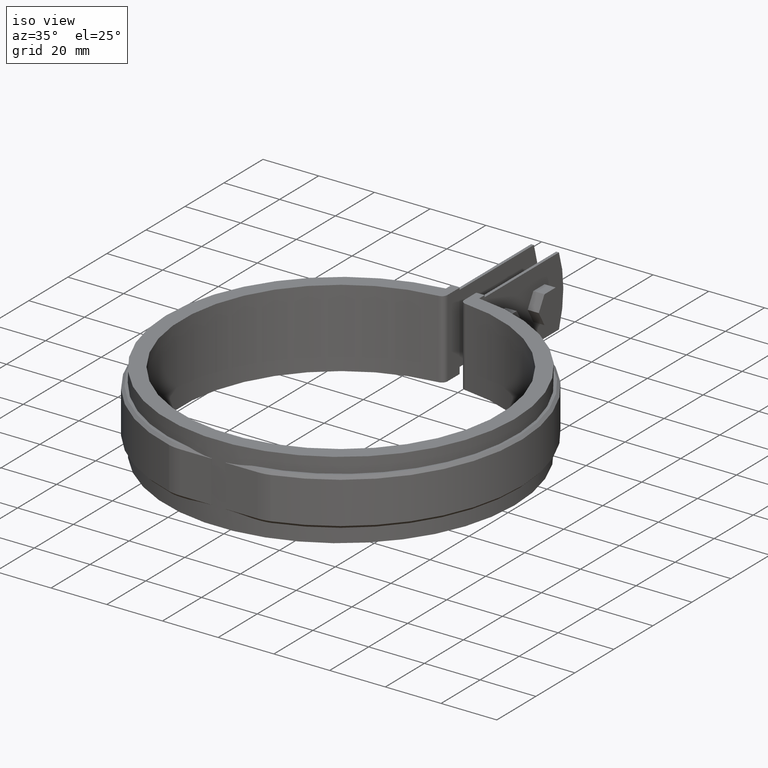
[diagram: clean part render]
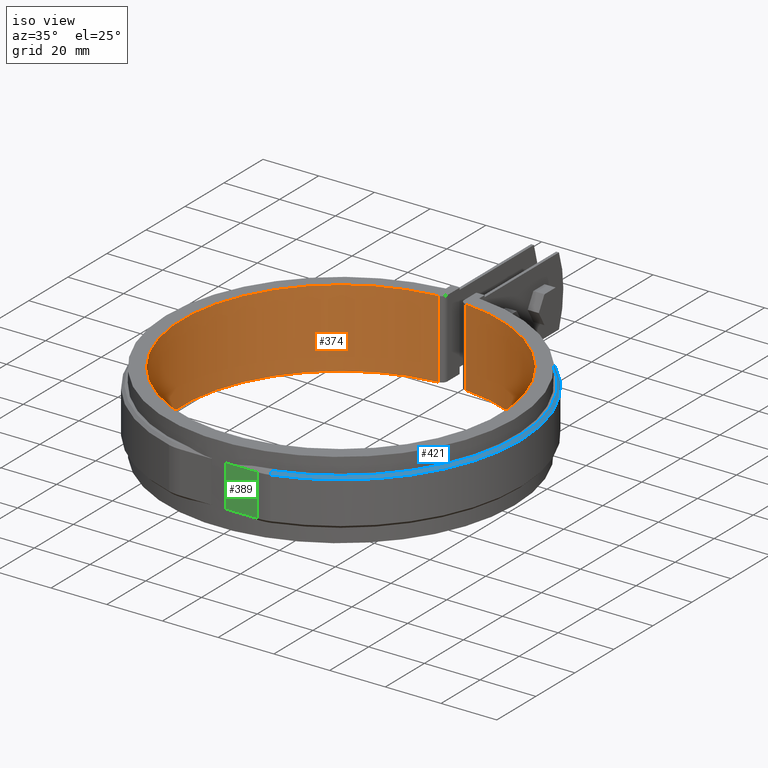
[diagram: same view with three faces highlighted in distinct colors, each labeled with its STEP entity id]
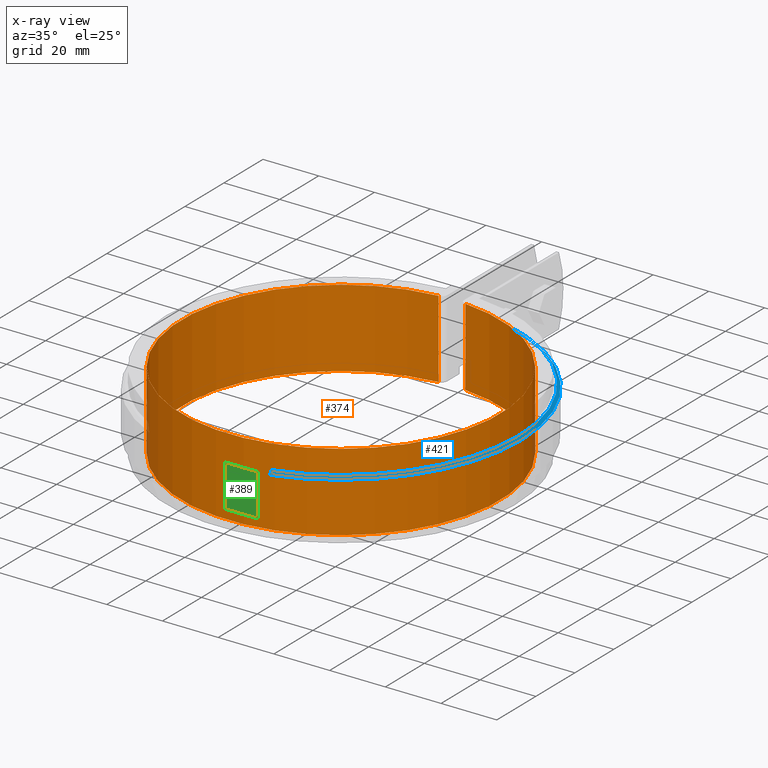
[diagram: x-ray of the same camera — body ghosted, the three highlighted faces saturated]
A machine part, iso view with three faces highlighted in distinct colors.
The next image is the same camera in x-ray (body ghosted, the three faces saturated) — at least one of them is partly hidden behind the body in this view.
Their STEP definitions:

[orange] entity #374 — the highlighted cylindrical surface (partial cylindrical patch) has radius 57.15 mm, axis along (0, 0, 1).
#374 = ADVANCED_FACE( '', ( #636 ), #637, .F. );
#636 = FACE_OUTER_BOUND( '', #1411, .T. );
#637 = CYLINDRICAL_SURFACE( '', #1412, 57.1500000000000 );
#1411 = EDGE_LOOP( '', ( #2833, #2834, #2835, #2836 ) );
#1412 = AXIS2_PLACEMENT_3D( '', #2837, #2838, #2839 );
#2833 = ORIENTED_EDGE( '', *, *, #4060, .F. );
#2834 = ORIENTED_EDGE( '', *, *, #4061, .F. );
#2835 = ORIENTED_EDGE( '', *, *, #4062, .T. );
#2836 = ORIENTED_EDGE( '', *, *, #4063, .T. );
#2837 = CARTESIAN_POINT( '', ( 0.000000000000000, 0.000000000000000, -14.0000000000000 ) );
#2838 = DIRECTION( '', ( 0.000000000000000, 0.000000000000000, 1.00000000000000 ) );
#2839 = DIRECTION( '', ( -0.0845308537616220, -0.996420862267712, 0.000000000000000 ) );
#4060 = EDGE_CURVE( '', #4677, #4678, #4679, .T. );
#4061 = EDGE_CURVE( '', #4680, #4677, #4681, .T. );
#4062 = EDGE_CURVE( '', #4680, #4682, #4683, .T. );
#4063 = EDGE_CURVE( '', #4682, #4678, #4684, .T. );
#4677 = VERTEX_POINT( '', #6868 );
#4678 = VERTEX_POINT( '', #6869 );
#4679 = CIRCLE( '', #6870, 57.1500000000000 );
#4680 = VERTEX_POINT( '', #6871 );
#4681 = LINE( '', #6872, #6873 );
#4682 = VERTEX_POINT( '', #6874 );
#4683 = CIRCLE( '', #6875, 57.1500000000000 );
#4684 = LINE( '', #6876, #6877 );
#6868 = CARTESIAN_POINT( '', ( 4.83093829247673, 56.9454522785998, 14.0000000000000 ) );
#6869 = CARTESIAN_POINT( '', ( -4.83093829247669, 56.9454522785998, 14.0000000000000 ) );
#6870 = AXIS2_PLACEMENT_3D( '', #8229, #8230, #8231 );
#6871 = CARTESIAN_POINT( '', ( 4.83093829247673, 56.9454522785998, -14.0000000000000 ) );
#6872 = CARTESIAN_POINT( '', ( 4.83093829247670, 56.9454522785998, -14.0000000000000 ) );
#6873 = VECTOR( '', #8232, 1000.00000000000 );
#6874 = CARTESIAN_POINT( '', ( -4.83093829247669, 56.9454522785998, -14.0000000000000 ) );
#6875 = AXIS2_PLACEMENT_3D( '', #8233, #8234, #8235 );
#6876 = CARTESIAN_POINT( '', ( -4.83093829247667, 56.9454522785998, -14.0000000000000 ) );
#6877 = VECTOR( '', #8236, 1000.00000000000 );
#8229 = CARTESIAN_POINT( '', ( 0.000000000000000, 0.000000000000000, 14.0000000000000 ) );
#8230 = DIRECTION( '', ( 0.000000000000000, 0.000000000000000, -1.00000000000000 ) );
#8231 = DIRECTION( '', ( -1.00000000000000, 0.000000000000000, 0.000000000000000 ) );
#8232 = DIRECTION( '', ( 0.000000000000000, 0.000000000000000, 1.00000000000000 ) );
#8233 = CARTESIAN_POINT( '', ( 0.000000000000000, 0.000000000000000, -14.0000000000000 ) );
#8234 = DIRECTION( '', ( 0.000000000000000, 0.000000000000000, -1.00000000000000 ) );
#8235 = DIRECTION( '', ( -1.00000000000000, 0.000000000000000, 0.000000000000000 ) );
#8236 = DIRECTION( '', ( 0.000000000000000, 0.000000000000000, 1.00000000000000 ) );

[blue] entity #421 — the highlighted conical surface has half-angle 45 deg.
#421 = ADVANCED_FACE( '', ( #734 ), #735, .T. );
#734 = FACE_OUTER_BOUND( '', #1696, .T. );
#735 = CONICAL_SURFACE( '', #1697, 64.6500000000000, 0.785398163397448 );
#1696 = EDGE_LOOP( '', ( #3283, #3284, #3285, #3286 ) );
#1697 = AXIS2_PLACEMENT_3D( '', #3287, #3288, #3289 );
#3283 = ORIENTED_EDGE( '', *, *, #4206, .F. );
#3284 = ORIENTED_EDGE( '', *, *, #4153, .F. );
#3285 = ORIENTED_EDGE( '', *, *, #4207, .F. );
#3286 = ORIENTED_EDGE( '', *, *, #4017, .F. );
#3287 = CARTESIAN_POINT( '', ( 0.000000000000000, 1.38777878078145E-014, 7.50000000000000 ) );
#3288 = DIRECTION( '', ( 0.000000000000000, 0.000000000000000, -1.00000000000000 ) );
#3289 = DIRECTION( '', ( -1.00000000000000, 0.000000000000000, 0.000000000000000 ) );
#4017 = EDGE_CURVE( '', #4595, #4597, #4598, .T. );
#4153 = EDGE_CURVE( '', #4837, #4839, #4840, .T. );
#4206 = EDGE_CURVE( '', #4839, #4595, #4912, .F. );
#4207 = EDGE_CURVE( '', #4597, #4837, #4913, .T. );
#4595 = VERTEX_POINT( '', #6531 );
#4597 = VERTEX_POINT( '', #6534 );
#4598 = CIRCLE( '', #6535, 64.6500000000000 );
#4837 = VERTEX_POINT( '', #7435 );
#4839 = VERTEX_POINT( '', #7437 );
#4840 = CIRCLE( '', #7438, 63.6500000000000 );
#4912 = B_SPLINE_CURVE_WITH_KNOTS( '', 3, ( #7608, #7609, #7610, #7611 ), .UNSPECIFIED., .F., .F., ( 4, 4 ), ( 707.015549678503, 707.016967009278 ), .UNSPECIFIED. );
#4913 = LINE( '', #7612, #7613 );
#6531 = CARTESIAN_POINT( '', ( 6.00000000000001, 64.3709756023629, 7.50000000000000 ) );
#6534 = CARTESIAN_POINT( '', ( 18.1643848332455, -62.0457703927492, 7.50000000000000 ) );
#6535 = AXIS2_PLACEMENT_3D( '', #8179, #8180, #8181 );
#7435 = CARTESIAN_POINT( '', ( 17.8834198706277, -61.0860523665660, 8.50000000000000 ) );
#7437 = CARTESIAN_POINT( '', ( 6.00000000000001, 63.3665724179555, 8.50000000000000 ) );
#7438 = AXIS2_PLACEMENT_3D( '', #8366, #8367, #8368 );
#7608 = CARTESIAN_POINT( '', ( 6.00000000000001, 64.3709756023459, 7.50000000001693 ) );
#7609 = CARTESIAN_POINT( '', ( 6.00000000000001, 64.0361859159823, 7.83334475999889 ) );
#7610 = CARTESIAN_POINT( '', ( 6.00000000000001, 63.7013850340220, 8.16667827364618 ) );
#7611 = CARTESIAN_POINT( '', ( 6.00000000000001, 63.3665724179511, 8.50000000000441 ) );
#7612 = CARTESIAN_POINT( '', ( 18.1643848332456, -62.0457703927492, 7.50000000000000 ) );
#7613 = VECTOR( '', #8439, 1000.00000000000 );
#8179 = CARTESIAN_POINT( '', ( 0.000000000000000, 1.38777878078145E-014, 7.50000000000000 ) );
#8180 = DIRECTION( '', ( 0.000000000000000, 0.000000000000000, -1.00000000000000 ) );
#8181 = DIRECTION( '', ( -1.00000000000000, 0.000000000000000, 0.000000000000000 ) );
#8366 = CARTESIAN_POINT( '', ( 0.000000000000000, 1.38777878078145E-014, 8.50000000000000 ) );
#8367 = DIRECTION( '', ( 0.000000000000000, 0.000000000000000, 1.00000000000000 ) );
#8368 = DIRECTION( '', ( 1.00000000000000, 0.000000000000000, 0.000000000000000 ) );
#8439 = DIRECTION( '', ( -0.198672230342923, 0.678623124341165, 0.707106781186550 ) );

[green] entity #389 — the highlighted planar face has unit normal (-0, -1, 0).
#389 = ADVANCED_FACE( '', ( #669 ), #670, .T. );
#669 = FACE_OUTER_BOUND( '', #1519, .T. );
#670 = PLANE( '', #1520 );
#1519 = EDGE_LOOP( '', ( #2992, #2993, #2994, #2995 ) );
#1520 = AXIS2_PLACEMENT_3D( '', #2996, #2997, #2998 );
#2992 = ORIENTED_EDGE( '', *, *, #4139, .T. );
#2993 = ORIENTED_EDGE( '', *, *, #4140, .T. );
#2994 = ORIENTED_EDGE( '', *, *, #4141, .F. );
#2995 = ORIENTED_EDGE( '', *, *, #4046, .T. );
#2996 = CARTESIAN_POINT( '', ( 13.9499103939774, -62.6500000000000, -8.50000000000000 ) );
#2997 = DIRECTION( '', ( -1.38777878078145E-017, -1.00000000000000, 0.000000000000000 ) );
#2998 = DIRECTION( '', ( -1.00000000000000, 1.38777878078145E-017, 0.000000000000000 ) );
#4046 = EDGE_CURVE( '', #4652, #4650, #4653, .T. );
#4139 = EDGE_CURVE( '', #4650, #4815, #4816, .T. );
#4140 = EDGE_CURVE( '', #4815, #4817, #4818, .F. );
#4141 = EDGE_CURVE( '', #4652, #4817, #4819, .T. );
#4650 = VERTEX_POINT( '', #6649 );
#4652 = VERTEX_POINT( '', #6652 );
#4653 = LINE( '', #6653, #6654 );
#4815 = VERTEX_POINT( '', #7406 );
#4816 = LINE( '', #7407, #7408 );
#4817 = VERTEX_POINT( '', #7409 );
#4818 = LINE( '', #7410, #7411 );
#4819 = LINE( '', #7412, #7413 );
#6649 = CARTESIAN_POINT( '', ( 13.9499103939774, -62.6500000000000, -7.50000000000000 ) );
#6652 = CARTESIAN_POINT( '', ( 2.50000000000000, -62.6500000000000, -7.50000000000000 ) );
#6653 = CARTESIAN_POINT( '', ( 13.9499103939774, -62.6500000000000, -7.50000000000000 ) );
#6654 = VECTOR( '', #8221, 1000.00000000000 );
#7406 = CARTESIAN_POINT( '', ( 13.9499103939774, -62.6500000000000, 7.50000000000000 ) );
#7407 = CARTESIAN_POINT( '', ( 13.9499103939774, -62.6500000000000, -8.50000000000000 ) );
#7408 = VECTOR( '', #8338, 1000.00000000000 );
#7409 = CARTESIAN_POINT( '', ( 2.50000000000000, -62.6500000000000, 7.50000000000000 ) );
#7410 = CARTESIAN_POINT( '', ( 13.9499103939774, -62.6500000000000, 7.50000000000000 ) );
#7411 = VECTOR( '', #8339, 1000.00000000000 );
#7412 = CARTESIAN_POINT( '', ( 2.50000000000000, -62.6500000000000, -8.50000000000000 ) );
#7413 = VECTOR( '', #8340, 1000.00000000000 );
#8221 = DIRECTION( '', ( 1.00000000000000, -1.38777878078145E-017, 3.92209379644736E-032 ) );
#8338 = DIRECTION( '', ( 0.000000000000000, 0.000000000000000, 1.00000000000000 ) );
#8339 = DIRECTION( '', ( 1.00000000000000, -1.38777878078145E-017, -6.10103479447368E-032 ) );
#8340 = DIRECTION( '', ( 0.000000000000000, 0.000000000000000, 1.00000000000000 ) );